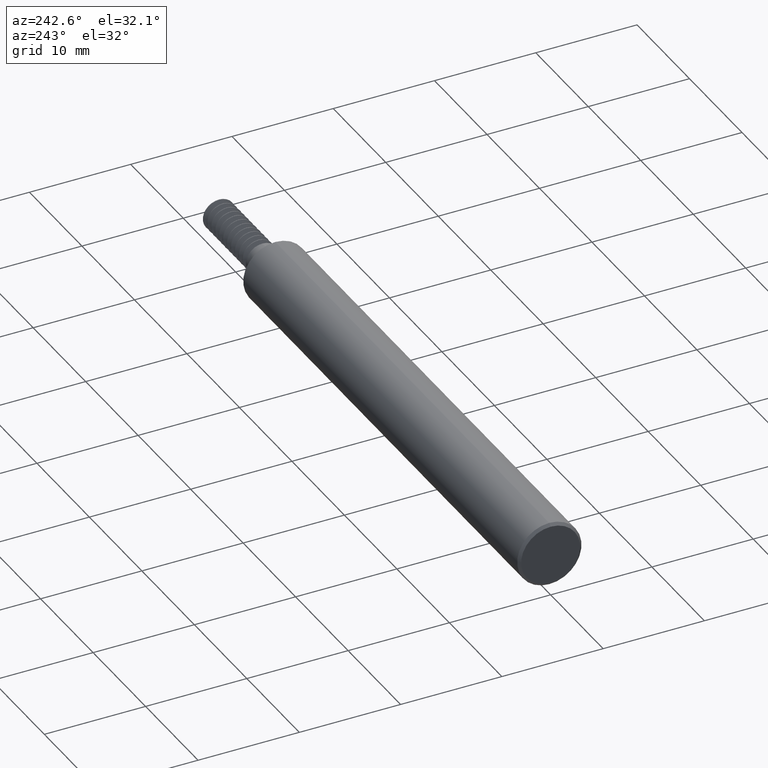
[diagram: clean part render]
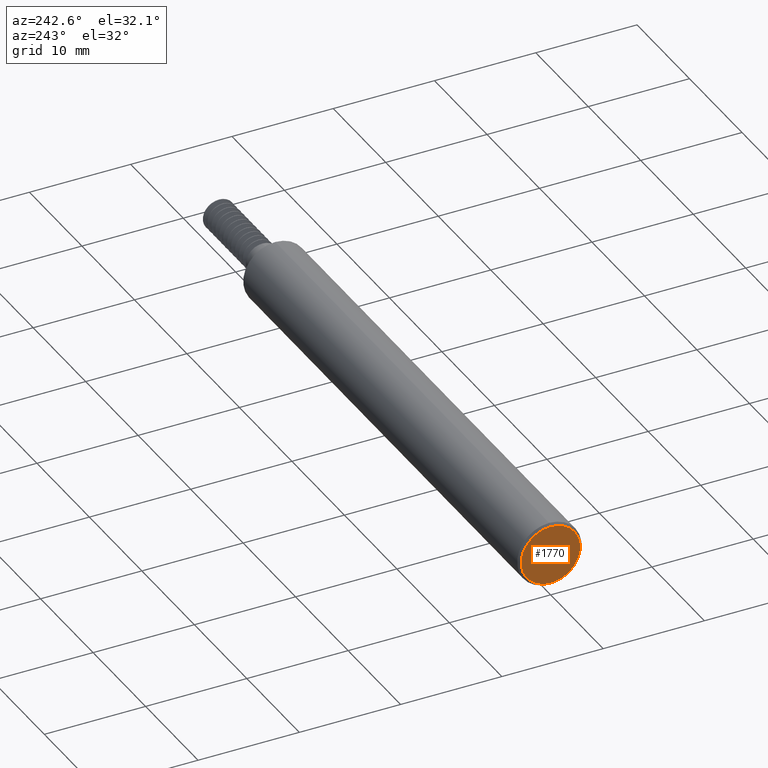
[diagram: same view with one face highlighted and labeled with its STEP entity id]
A machine part, auxiliary view. The second image highlights one B-rep face of the part: STEP entity #1770.
In plain terms, the highlighted planar face has unit normal (1, 0, 0).
Its self-contained STEP definition (entity closure, byte-faithful):
#163 = EDGE_LOOP ( 'NONE', ( #1778, #1391 ) ) ;
#375 = DIRECTION ( 'NONE',  ( -1.000000000000000000, -0.000000000000000000, -0.000000000000000000 ) ) ;
#606 = FACE_OUTER_BOUND ( 'NONE', #163, .T. ) ;
#697 = AXIS2_PLACEMENT_3D ( 'NONE', #1694, #1097, #2528 ) ;
#782 = VERTEX_POINT ( 'NONE', #2551 ) ;
#1004 = VERTEX_POINT ( 'NONE', #2563 ) ;
#1006 = CIRCLE ( 'NONE', #1398, 0.1148500000000005489 ) ;
#1097 = DIRECTION ( 'NONE',  ( -1.000000000000000000, -0.000000000000000000, -0.000000000000000000 ) ) ;
#1237 = DIRECTION ( 'NONE',  ( 0.000000000000000000, 0.000000000000000000, -1.000000000000000000 ) ) ;
#1391 = ORIENTED_EDGE ( 'NONE', *, *, #1899, .T. ) ;
#1398 = AXIS2_PLACEMENT_3D ( 'NONE', #2033, #375, #1873 ) ;
#1602 = CARTESIAN_POINT ( 'NONE',  ( 0.000000000000000000, 0.000000000000000000, 0.000000000000000000 ) ) ;
#1694 = CARTESIAN_POINT ( 'NONE',  ( 0.000000000000000000, 0.000000000000000000, 0.000000000000000000 ) ) ;
#1770 = ADVANCED_FACE ( 'NONE', ( #606 ), #2266, .F. ) ;
#1778 = ORIENTED_EDGE ( 'NONE', *, *, #2631, .T. ) ;
#1873 = DIRECTION ( 'NONE',  ( 0.000000000000000000, 0.000000000000000000, -1.000000000000000000 ) ) ;
#1899 = EDGE_CURVE ( 'NONE', #782, #1004, #2354, .T. ) ;
#2000 = AXIS2_PLACEMENT_3D ( 'NONE', #1602, #2226, #1237 ) ;
#2033 = CARTESIAN_POINT ( 'NONE',  ( 0.000000000000000000, 0.000000000000000000, 0.000000000000000000 ) ) ;
#2226 = DIRECTION ( 'NONE',  ( 1.000000000000000000, 0.000000000000000000, 0.000000000000000000 ) ) ;
#2266 = PLANE ( 'NONE',  #2000 ) ;
#2354 = CIRCLE ( 'NONE', #697, 0.1148500000000005489 ) ;
#2528 = DIRECTION ( 'NONE',  ( 0.000000000000000000, 0.000000000000000000, -1.000000000000000000 ) ) ;
#2551 = CARTESIAN_POINT ( 'NONE',  ( 0.000000000000000000, 1.467739188778106286E-17, 0.1148500000000005489 ) ) ;
#2563 = CARTESIAN_POINT ( 'NONE',  ( 0.000000000000000000, 0.000000000000000000, -0.1148500000000005489 ) ) ;
#2631 = EDGE_CURVE ( 'NONE', #1004, #782, #1006, .T. ) ;